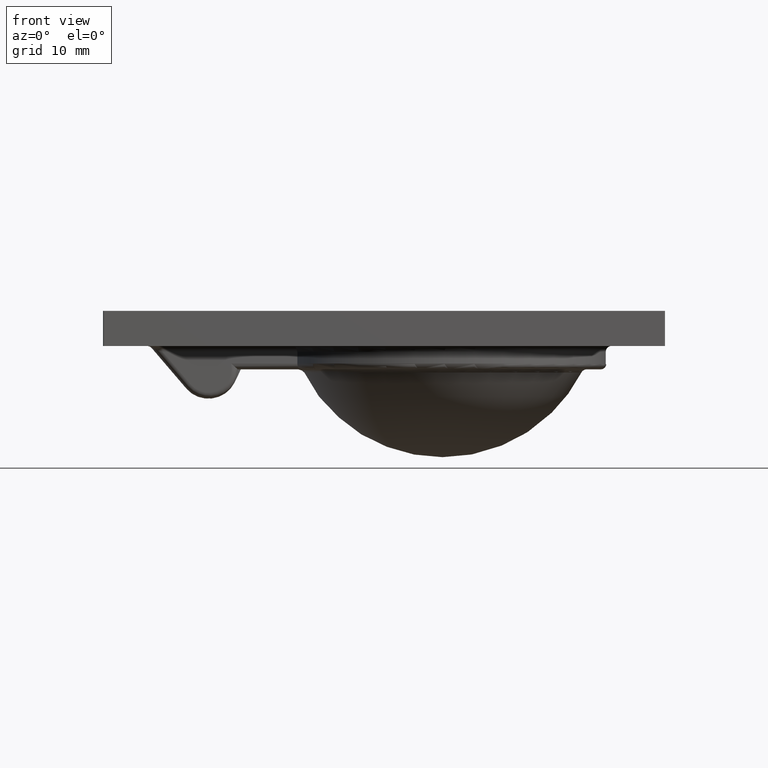
[diagram: clean part render]
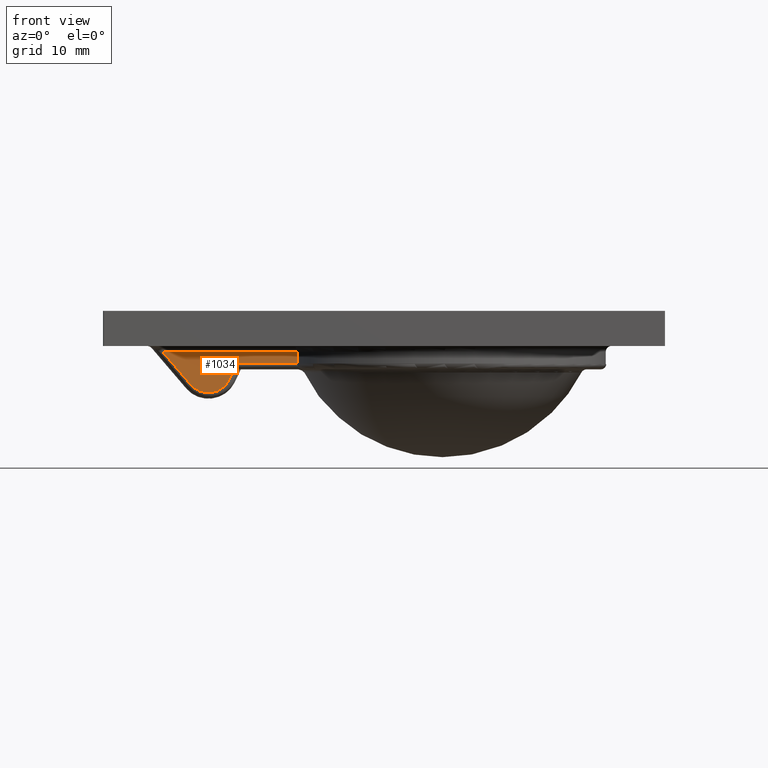
[diagram: same view with one face highlighted and labeled with its STEP entity id]
A machine part, front view. The second image highlights one B-rep face of the part: STEP entity #1034.
In plain terms, the highlighted planar face has unit normal (0, 1, 0).
Its self-contained STEP definition (entity closure, byte-faithful):
#85=PLANE('',#1134);
#125=FACE_OUTER_BOUND('',#195,.T.);
#195=EDGE_LOOP('',(#818,#819,#820,#821,#822));
#286=LINE('',#1709,#354);
#288=LINE('',#1771,#356);
#291=LINE('',#1792,#359);
#298=LINE('',#1815,#366);
#354=VECTOR('',#1304,11.5148814537978);
#356=VECTOR('',#1324,5.66391155925905);
#359=VECTOR('',#1333,3.68417422851976);
#366=VECTOR('',#1362,1.);
#421=CIRCLE('',#1125,2.);
#492=VERTEX_POINT('',#1619);
#495=VERTEX_POINT('',#1704);
#500=VERTEX_POINT('',#1734);
#504=VERTEX_POINT('',#1770);
#505=VERTEX_POINT('',#1790);
#607=EDGE_CURVE('',#495,#492,#286,.T.);
#617=EDGE_CURVE('',#500,#504,#288,.T.);
#622=EDGE_CURVE('',#505,#495,#291,.T.);
#623=EDGE_CURVE('',#504,#505,#421,.T.);
#634=EDGE_CURVE('',#492,#500,#298,.T.);
#818=ORIENTED_EDGE('',*,*,#607,.F.);
#819=ORIENTED_EDGE('',*,*,#622,.F.);
#820=ORIENTED_EDGE('',*,*,#623,.F.);
#821=ORIENTED_EDGE('',*,*,#617,.F.);
#822=ORIENTED_EDGE('',*,*,#634,.F.);
#1034=ADVANCED_FACE('',(#125),#85,.F.);
#1125=AXIS2_PLACEMENT_3D('',#1794,#1336,#1337);
#1134=AXIS2_PLACEMENT_3D('',#1814,#1360,#1361);
#1304=DIRECTION('',(1.,0.,0.));
#1324=DIRECTION('',(-1.,0.,0.));
#1333=DIRECTION('',(-0.649947587428402,0.,0.75997903497136));
#1336=DIRECTION('center_axis',(0.,1.,0.));
#1337=DIRECTION('ref_axis',(0.346425291389528,0.,-0.938077564749142));
#1360=DIRECTION('center_axis',(0.,1.,0.));
#1361=DIRECTION('ref_axis',(0.,0.,1.));
#1362=DIRECTION('',(0.,0.,-1.));
#1619=CARTESIAN_POINT('',(-7.39959676763724,-6.5,-0.5));
#1704=CARTESIAN_POINT('',(-18.914478221435,-6.5,-0.5));
#1709=CARTESIAN_POINT('',(-9.02743976754594,-6.5,-0.5));
#1734=CARTESIAN_POINT('',(-7.39959676763724,-6.5,-1.5));
#1770=CARTESIAN_POINT('',(-13.0635083268963,-6.5,-1.5));
#1771=CARTESIAN_POINT('',(0.472560232454065,-6.5,-1.5));
#1790=CARTESIAN_POINT('',(-16.5199580699427,-6.5,-3.2998951748568));
#1792=CARTESIAN_POINT('',(-17.3535497316886,-6.5,-2.32518244584992));
#1794=CARTESIAN_POINT('Origin',(-15.,-6.5,-2.));
#1814=CARTESIAN_POINT('Origin',(-18.0548795350919,-6.5,-1.23735702322542));
#1815=CARTESIAN_POINT('',(-7.39959676763724,-6.5,-1.));